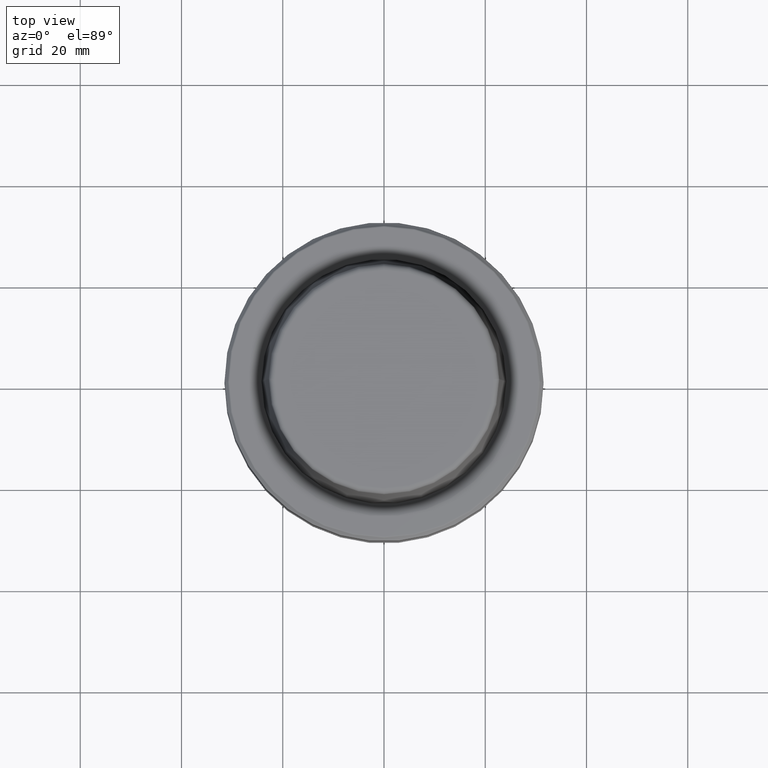
[diagram: clean part render]
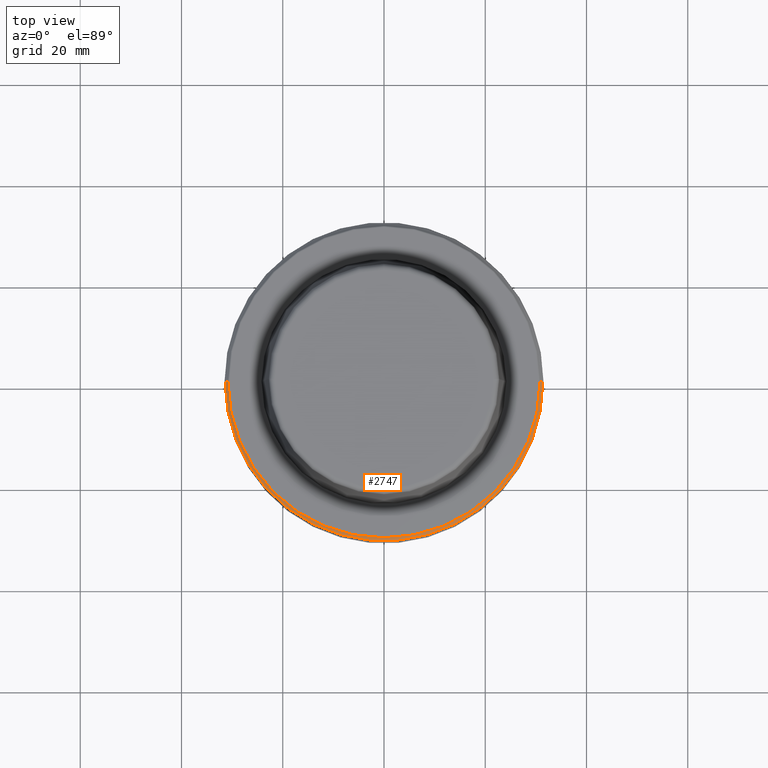
[diagram: same view with one face highlighted and labeled with its STEP entity id]
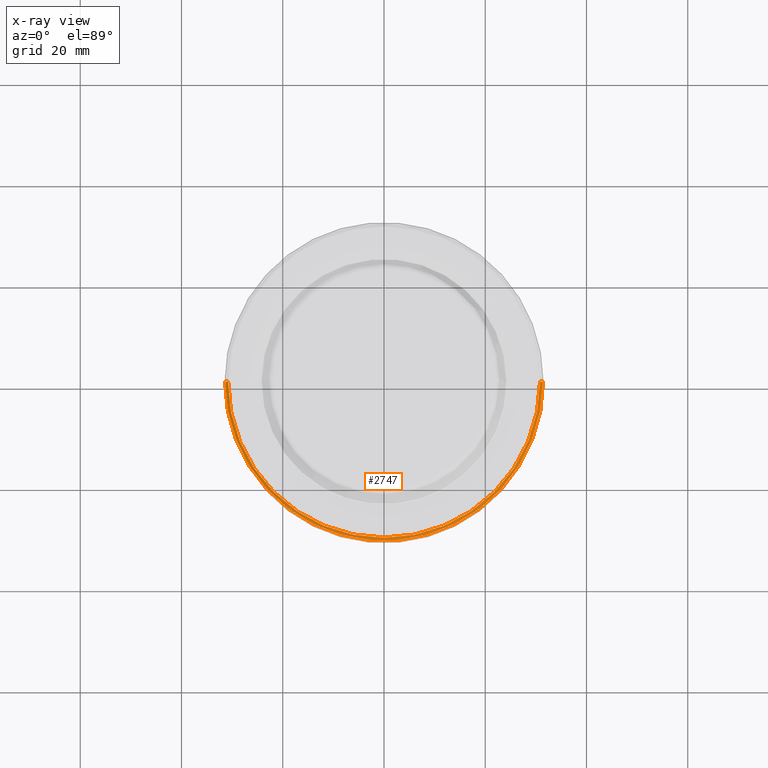
[diagram: x-ray of the same camera — body ghosted, the highlighted face saturated]
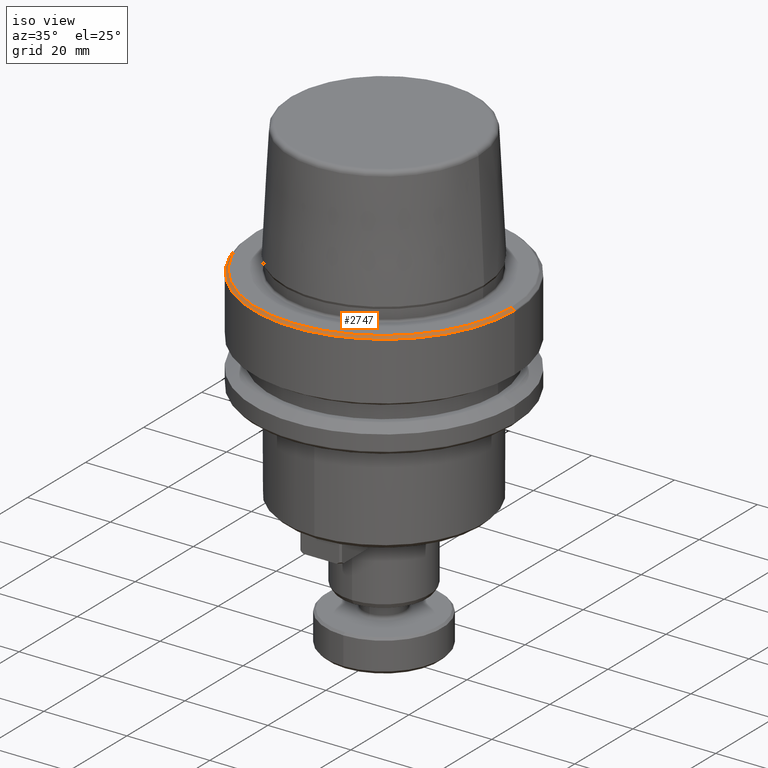
[diagram: same view with one face highlighted and labeled with its STEP entity id]
A machine part, top view. The second image highlights one B-rep face of the part: STEP entity #2747.
The next image is the same camera in x-ray: the body ghosted, the highlighted face saturated — about 0% of this face is hidden behind the body in this view.
A second angle (iso view) of the same face is appended — the face is thin or edge-on in the first view.
In plain terms, the highlighted conical surface has half-angle 45 deg.
Its self-contained STEP definition (entity closure, byte-faithful):
#95 = CIRCLE ( 'NONE', #2495, 31.38284271247461600 ) ;
#125 = ORIENTED_EDGE ( 'NONE', *, *, #1591, .F. ) ;
#253 = ORIENTED_EDGE ( 'NONE', *, *, #1144, .T. ) ;
#267 = LINE ( 'NONE', #577, #1396 ) ;
#344 = ORIENTED_EDGE ( 'NONE', *, *, #1921, .T. ) ;
#537 = CIRCLE ( 'NONE', #702, 30.81715728752537900 ) ;
#542 = DIRECTION ( 'NONE',  ( 0.0000000000000000000, 0.0000000000000000000, -1.000000000000000000 ) ) ;
#577 = CARTESIAN_POINT ( 'NONE',  ( -31.38284271247461600, 0.0000000000000000000, -0.6828427124746239100 ) ) ;
#651 = DIRECTION ( 'NONE',  ( 1.000000000000000000, 0.0000000000000000000, 0.0000000000000000000 ) ) ;
#688 = DIRECTION ( 'NONE',  ( -1.000000000000000000, 0.0000000000000000000, 0.0000000000000000000 ) ) ;
#702 = AXIS2_PLACEMENT_3D ( 'NONE', #2016, #2135, #651 ) ;
#725 = CARTESIAN_POINT ( 'NONE',  ( 0.0000000000000000000, 0.0000000000000000000, -0.6828427124746239100 ) ) ;
#902 = LINE ( 'NONE', #1298, #2714 ) ;
#967 = VERTEX_POINT ( 'NONE', #2177 ) ;
#977 = CONICAL_SURFACE ( 'NONE', #1749, 31.38284271247461600, 0.7853981633974452800 ) ;
#1030 = DIRECTION ( 'NONE',  ( -0.0000000000000000000, -0.0000000000000000000, 1.000000000000000000 ) ) ;
#1144 = EDGE_CURVE ( 'NONE', #2646, #967, #267, .T. ) ;
#1236 = CARTESIAN_POINT ( 'NONE',  ( -30.81715728752537900, 0.0000000000000000000, -0.1171572875253851200 ) ) ;
#1298 = CARTESIAN_POINT ( 'NONE',  ( 31.38284271247461600, 3.843289787597687600E-015, -0.6828427124746239100 ) ) ;
#1381 = CARTESIAN_POINT ( 'NONE',  ( 31.38284271247461600, 0.0000000000000000000, -0.6828427124746239100 ) ) ;
#1396 = VECTOR ( 'NONE', #2069, 1000.000000000000000 ) ;
#1532 = VERTEX_POINT ( 'NONE', #2557 ) ;
#1591 = EDGE_CURVE ( 'NONE', #1532, #2601, #902, .T. ) ;
#1659 = EDGE_LOOP ( 'NONE', ( #125, #1978, #253, #344 ) ) ;
#1687 = DIRECTION ( 'NONE',  ( 0.7071067811865453500, 8.659560562354907000E-017, -0.7071067811865496800 ) ) ;
#1749 = AXIS2_PLACEMENT_3D ( 'NONE', #725, #542, #688 ) ;
#1921 = EDGE_CURVE ( 'NONE', #967, #2601, #95, .T. ) ;
#1978 = ORIENTED_EDGE ( 'NONE', *, *, #1991, .F. ) ;
#1991 = EDGE_CURVE ( 'NONE', #2646, #1532, #537, .T. ) ;
#2016 = CARTESIAN_POINT ( 'NONE',  ( 0.0000000000000000000, 0.0000000000000000000, -0.1171572875253851200 ) ) ;
#2069 = DIRECTION ( 'NONE',  ( -0.7071067811865453500, 0.0000000000000000000, -0.7071067811865496800 ) ) ;
#2135 = DIRECTION ( 'NONE',  ( -0.0000000000000000000, -0.0000000000000000000, 1.000000000000000000 ) ) ;
#2177 = CARTESIAN_POINT ( 'NONE',  ( -31.38284271247461600, 3.850463602455925900E-015, -0.6828427124746239100 ) ) ;
#2199 = FACE_OUTER_BOUND ( 'NONE', #1659, .T. ) ;
#2332 = DIRECTION ( 'NONE',  ( 1.000000000000000000, 0.0000000000000000000, 0.0000000000000000000 ) ) ;
#2495 = AXIS2_PLACEMENT_3D ( 'NONE', #2545, #1030, #2332 ) ;
#2545 = CARTESIAN_POINT ( 'NONE',  ( 0.0000000000000000000, 0.0000000000000000000, -0.6828427124746239100 ) ) ;
#2557 = CARTESIAN_POINT ( 'NONE',  ( 30.81715728752537900, 3.808651545348268500E-015, -0.1171572875253851200 ) ) ;
#2601 = VERTEX_POINT ( 'NONE', #1381 ) ;
#2646 = VERTEX_POINT ( 'NONE', #1236 ) ;
#2714 = VECTOR ( 'NONE', #1687, 1000.000000000000000 ) ;
#2747 = ADVANCED_FACE ( 'NONE', ( #2199 ), #977, .T. ) ;